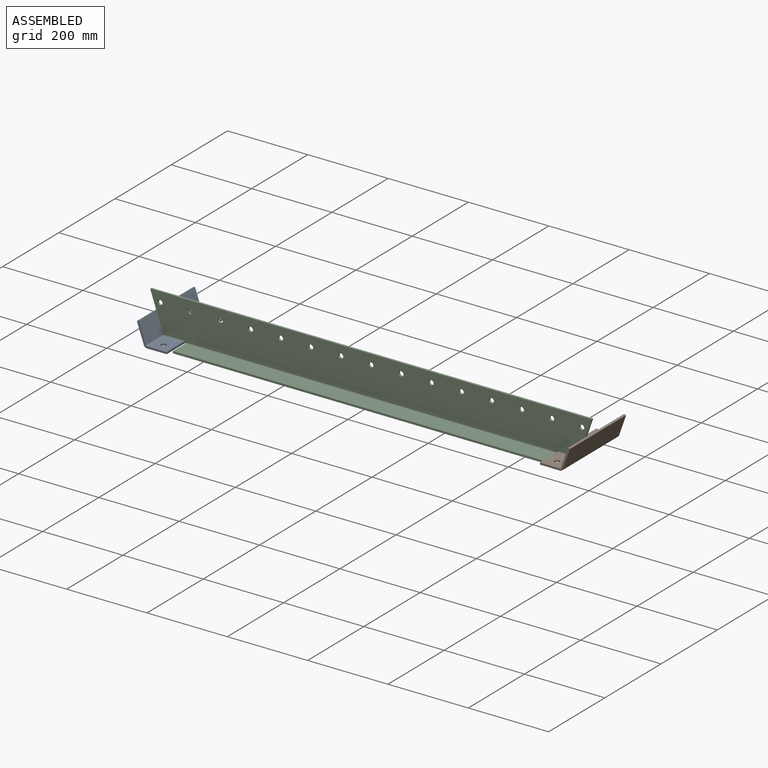
[diagram: assembled view]
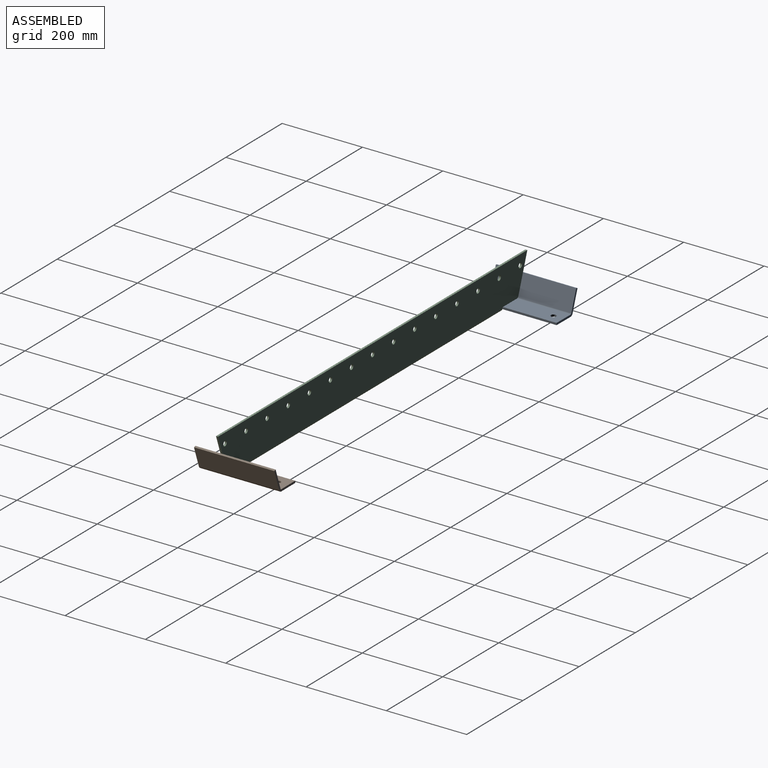
[diagram: assembled view, second angle]
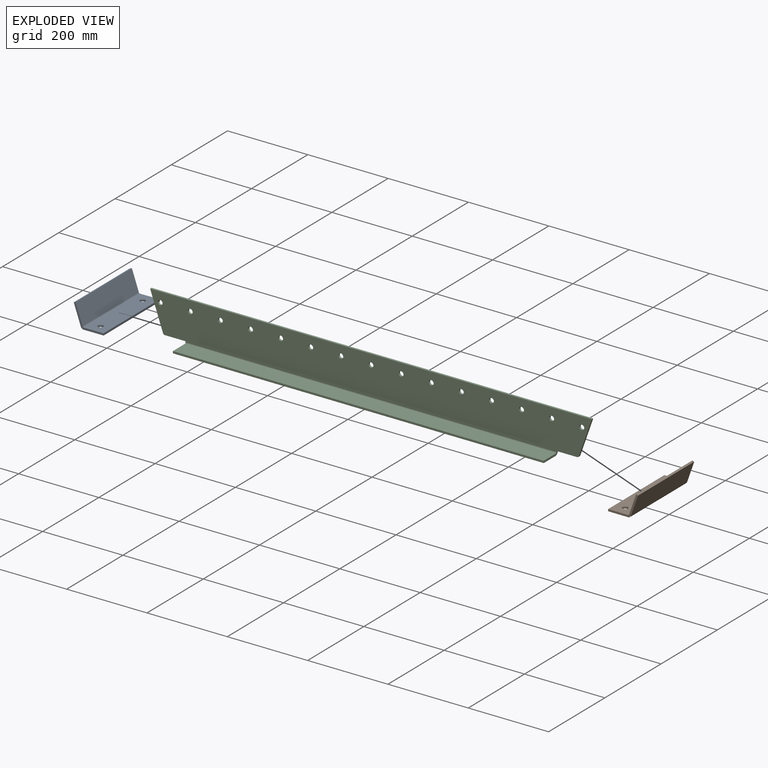
[diagram: exploded view]
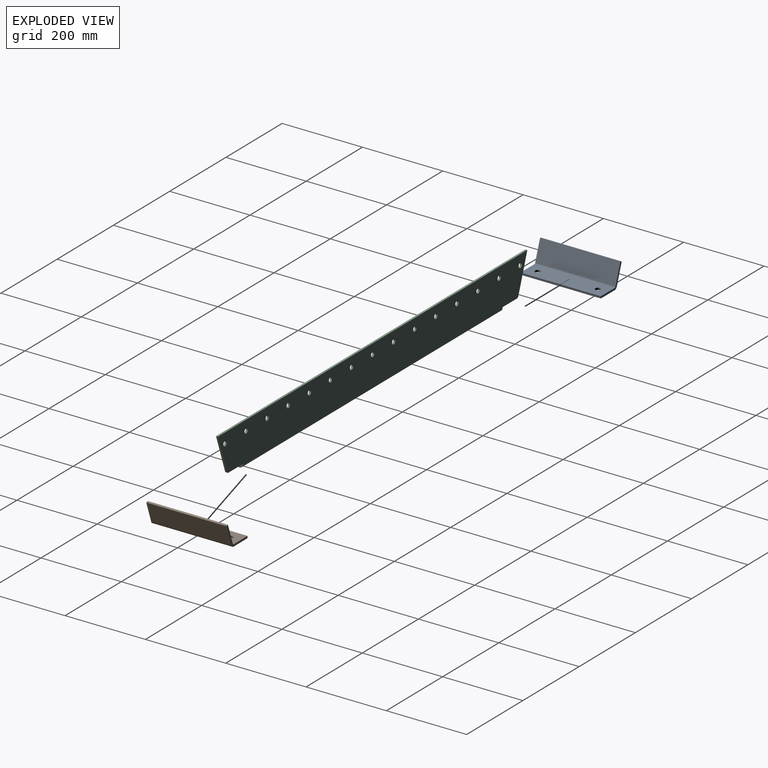
[diagram: exploded view, second angle]
ASSEMBLY  parts=3 mates=2
PART A: 16 faces, bbox 53.6x200x76.5 mm
  f0: plane 52.86x5mm, normal (0,-1,0), area 264.3mm2, adj f1,f3,f4,f13
  f1: plane 200x5mm, normal (0,0,1), area 1000mm2, adj f0,f2,f3,f4
  f2: plane 52.86x5mm, normal (0,1,0), area 264.3mm2, adj f1,f3,f4,f12
  f3: plane 200x52.86mm, normal (-1,0,0), area 10572mm2, adj f0,f1,f2,f14
  f4: plane 200x52.86mm, normal (1,0,0), area 10572mm2, adj f0,f1,f2,f15
  f5: plane 200x4.73mm, normal (0.95,0,-0.33), area 1000mm2, adj f6,f9,f10,f11
  f6: plane 48.24x20.78mm, normal (0,-1,0), area 246.5mm2, adj f5,f10,f11,f13
  f7: cylinder r=6.5mm len=13.92mm, axis (-0.33,0,-0.95), area 204.2mm2, adj f10,f11
  f8: cylinder r=6.5mm len=13.92mm, axis (-0.33,0,-0.95), area 204.2mm2, adj f10,f11
  f9: plane 48.24x20.78mm, normal (0,1,0), area 246.5mm2, adj f5,f10,f11,f12
  f10: plane 200x46.61mm, normal (-0.33,0,-0.95), area 9593.3mm2, adj f5,f6,f7,f8,f9,f14
  f11: plane 200x46.61mm, normal (0.33,0,0.95), area 9593.3mm2, adj f5,f6,f7,f8,f9,f15
  f12: plane 7.56x7.02mm, normal (0,1,0), area 34.1mm2, adj f2,f9,f14,f15
  f13: plane 7.56x7.02mm, normal (0,-1,0), area 34.1mm2, adj f0,f6,f14,f15
  f14: cylinder r=8mm len=200mm, axis (0,1,0), area 1982.7mm2, adj f3,f10,f12,f13
  f15: cylinder r=3mm len=200mm, axis (0,1,0), area 743.5mm2, adj f4,f11,f12,f13
PART B: same geometry as A
PART C: 35 faces, bbox 1100x50x105 mm
  f0: plane 5x2mm, normal (1,0,0), area 10mm2, adj f6,f22,f23,f32
  f1: plane 5x2mm, normal (-1,0,0), area 10mm2, adj f2,f22,f23,f31
  f2: plane 51.45x5mm, normal (0,0,-1), area 257.3mm2, adj f1,f22,f23,f25
  f3: plane 91.65x32.08mm, normal (-0.94,0,-0.33), area 485.5mm2, adj f4,f22,f23,f25
  f4: plane 1100x5mm, normal (0,0,1), area 5500mm2, adj f3,f5,f22,f23
  f5: plane 91.65x32.08mm, normal (0.94,0,-0.33), area 485.5mm2, adj f4,f22,f23,f24
  f6: plane 51.45x5mm, normal (0,0,-1), area 257.3mm2, adj f0,f22,f23,f24
  f7: cylinder r=6mm len=12mm, axis (0,-1,0), area 188.5mm2, adj f22,f23
  f8: cylinder r=6mm len=12mm, axis (0,-1,0), area 188.5mm2, adj f22,f23
  f9: cylinder r=6mm len=12mm, axis (0,-1,0), area 188.5mm2, adj f22,f23
  f10: cylinder r=6mm len=12mm, axis (0,-1,0), area 188.5mm2, adj f22,f23
  f11: cylinder r=6mm len=12mm, axis (0,-1,0), area 188.5mm2, adj f22,f23
  f12: cylinder r=6mm len=12mm, axis (0,-1,0), area 188.5mm2, adj f22,f23
  f13: cylinder r=6mm len=12mm, axis (0,-1,0), area 188.5mm2, adj f22,f23
  f14: cylinder r=6mm len=12mm, axis (0,-1,0), area 188.5mm2, adj f22,f23
  f15: cylinder r=6mm len=12mm, axis (0,-1,0), area 188.5mm2, adj f22,f23
  f16: cylinder r=6mm len=12mm, axis (0,-1,0), area 188.5mm2, adj f22,f23
  f17: cylinder r=6mm len=12mm, axis (0,-1,0), area 188.5mm2, adj f22,f23
  f18: cylinder r=6mm len=12mm, axis (0,-1,0), area 188.5mm2, adj f22,f23
  f19: cylinder r=6mm len=12mm, axis (0,-1,0), area 188.5mm2, adj f22,f23
  f20: cylinder r=6mm len=12mm, axis (0,-1,0), area 188.5mm2, adj f22,f23
  f21: cylinder r=6mm len=12mm, axis (0,-1,0), area 188.5mm2, adj f22,f23
  f22: plane 1100x97mm, normal (0,1,0), area 101487.2mm2, adj f0,f1,f2,f3,f4,f5,f6,f7
  f23: plane 1100x97mm, normal (0,-1,0), area 101487.2mm2, adj f0,f1,f2,f3,f4,f5,f6,f7
  f24: cylinder r=5mm len=5mm, axis (0,1,0), area 30.9mm2, adj f5,f6,f22,f23
  f25: cylinder r=5mm len=5mm, axis (0,-1,0), area 30.9mm2, adj f2,f3,f22,f23
  f26: plane 923.5x5mm, normal (0,-1,0), area 4617.5mm2, adj f27,f28,f29,f30
  f27: plane 42x5mm, normal (-1,0,0), area 210mm2, adj f26,f29,f30,f31
  f28: plane 42x5mm, normal (1,0,0), area 210mm2, adj f26,f29,f30,f32
  f29: plane 923.5x42mm, normal (0,0,-1), area 38787mm2, adj f26,f27,f28,f33
  f30: plane 923.5x42mm, normal (0,0,1), area 38787mm2, adj f26,f27,f28,f34
  f31: plane 8x8mm, normal (-1,0,0), area 43.2mm2, adj f1,f27,f33,f34
  f32: plane 8x8mm, normal (1,0,0), area 43.2mm2, adj f0,f28,f33,f34
  f33: cylinder r=8mm len=923.5mm, axis (-1,0,0), area 11605mm2, adj f22,f29,f31,f32
  f34: cylinder r=3mm len=923.5mm, axis (-1,0,0), area 4351.9mm2, adj f23,f30,f31,f32
PLACE A rot(axis=(0,-1,0),19.3deg) t=(-63.36,111.42,-174.79)mm fixed
PLACE B rot(axis=(-0.17,0,-0.99),180deg) t=(1014.95,311.42,-174.79)mm fixed
PLACE C t=(-74.21,178.92,-128.66)mm
MATE fastened B.f4 <-> C.f5  axis (-0.94,0,0.33) through (1001.49,211.42,-198.09)mm
MATE fastened A.f4 <-> C.f3  axis (0.94,0,0.33) through (-49.91,211.42,-198.09)mm
